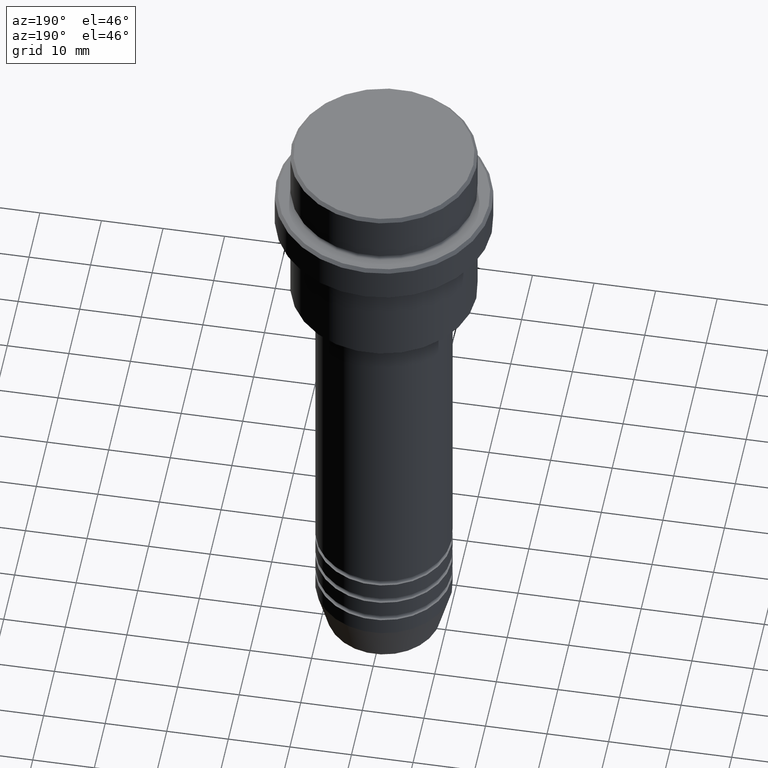
[diagram: clean part render]
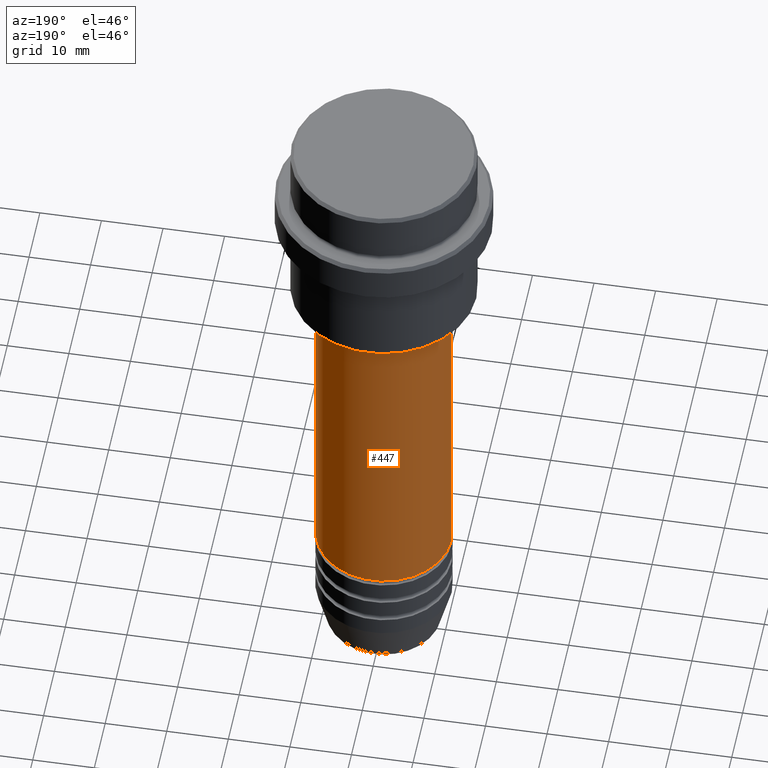
[diagram: same view with one face highlighted and labeled with its STEP entity id]
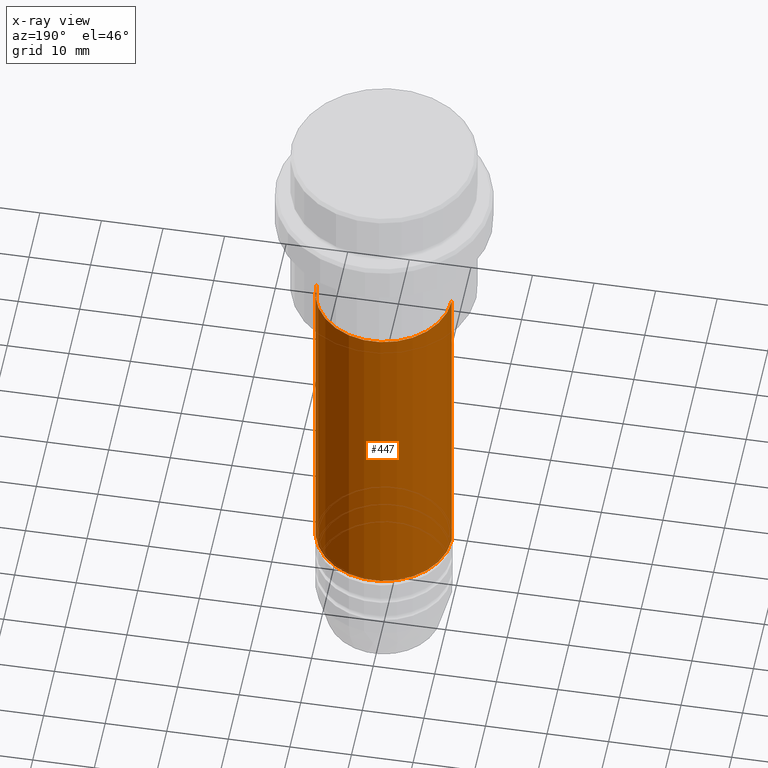
[diagram: x-ray of the same camera — body ghosted, the highlighted face saturated]
A machine part, auxiliary view. The second image highlights one B-rep face of the part: STEP entity #447.
The next image is the same camera in x-ray: the body ghosted, the highlighted face saturated — about 0% of this face is hidden behind the body in this view.
In plain terms, the highlighted cylindrical surface (partial cylindrical patch) has radius 11 mm, axis along (-0, -0, 1).
Its self-contained STEP definition (entity closure, byte-faithful):
#25 = VECTOR ( 'NONE', #541, 1000.000000000000000 ) ;
#45 = ORIENTED_EDGE ( 'NONE', *, *, #81, .T. ) ;
#81 = EDGE_CURVE ( 'NONE', #822, #452, #1109, .T. ) ;
#95 = CIRCLE ( 'NONE', #492, 10.99999999999999822 ) ;
#129 = DIRECTION ( 'NONE',  ( -0.000000000000000000, -0.000000000000000000, 1.000000000000000000 ) ) ;
#152 = ORIENTED_EDGE ( 'NONE', *, *, #594, .F. ) ;
#199 = CARTESIAN_POINT ( 'NONE',  ( -11.00000000000000000, 1.347111479062088405E-15, -86.99999999999988631 ) ) ;
#238 = DIRECTION ( 'NONE',  ( -0.000000000000000000, -0.000000000000000000, 1.000000000000000000 ) ) ;
#264 = CIRCLE ( 'NONE', #1162, 11.00000000000000000 ) ;
#310 = CARTESIAN_POINT ( 'NONE',  ( 0.000000000000000000, 0.000000000000000000, -86.99999999999988631 ) ) ;
#407 = FACE_OUTER_BOUND ( 'NONE', #650, .T. ) ;
#415 = LINE ( 'NONE', #857, #769 ) ;
#447 = ADVANCED_FACE ( 'NONE', ( #407 ), #1284, .T. ) ;
#452 = VERTEX_POINT ( 'NONE', #568 ) ;
#486 = VERTEX_POINT ( 'NONE', #900 ) ;
#490 = AXIS2_PLACEMENT_3D ( 'NONE', #745, #1186, #1124 ) ;
#492 = AXIS2_PLACEMENT_3D ( 'NONE', #529, #129, #1412 ) ;
#529 = CARTESIAN_POINT ( 'NONE',  ( 0.000000000000000000, 0.000000000000000000, -31.99999999999997868 ) ) ;
#541 = DIRECTION ( 'NONE',  ( -0.000000000000000000, -0.000000000000000000, 1.000000000000000000 ) ) ;
#568 = CARTESIAN_POINT ( 'NONE',  ( -10.99999999999999822, 1.347111479062088207E-15, -31.99999999999997868 ) ) ;
#594 = EDGE_CURVE ( 'NONE', #919, #452, #95, .T. ) ;
#615 = EDGE_CURVE ( 'NONE', #486, #919, #415, .T. ) ;
#633 = EDGE_CURVE ( 'NONE', #486, #822, #264, .T. ) ;
#650 = EDGE_LOOP ( 'NONE', ( #983, #45, #152, #968 ) ) ;
#681 = DIRECTION ( 'NONE',  ( 1.000000000000000000, 0.000000000000000000, 0.000000000000000000 ) ) ;
#745 = CARTESIAN_POINT ( 'NONE',  ( 0.000000000000000000, 0.000000000000000000, 0.000000000000000000 ) ) ;
#769 = VECTOR ( 'NONE', #1092, 1000.000000000000000 ) ;
#822 = VERTEX_POINT ( 'NONE', #199 ) ;
#857 = CARTESIAN_POINT ( 'NONE',  ( 11.00000000000000000, 0.000000000000000000, 0.000000000000000000 ) ) ;
#900 = CARTESIAN_POINT ( 'NONE',  ( 11.00000000000000000, 0.000000000000000000, -86.99999999999988631 ) ) ;
#919 = VERTEX_POINT ( 'NONE', #1191 ) ;
#968 = ORIENTED_EDGE ( 'NONE', *, *, #615, .F. ) ;
#983 = ORIENTED_EDGE ( 'NONE', *, *, #633, .T. ) ;
#1092 = DIRECTION ( 'NONE',  ( -0.000000000000000000, -0.000000000000000000, 1.000000000000000000 ) ) ;
#1109 = LINE ( 'NONE', #1307, #25 ) ;
#1124 = DIRECTION ( 'NONE',  ( 1.000000000000000000, 0.000000000000000000, 0.000000000000000000 ) ) ;
#1162 = AXIS2_PLACEMENT_3D ( 'NONE', #310, #238, #681 ) ;
#1186 = DIRECTION ( 'NONE',  ( -0.000000000000000000, -0.000000000000000000, 1.000000000000000000 ) ) ;
#1191 = CARTESIAN_POINT ( 'NONE',  ( 10.99999999999999822, 0.000000000000000000, -31.99999999999997868 ) ) ;
#1284 = CYLINDRICAL_SURFACE ( 'NONE', #490, 11.00000000000000000 ) ;
#1307 = CARTESIAN_POINT ( 'NONE',  ( -11.00000000000000000, 1.347111479062088405E-15, 0.000000000000000000 ) ) ;
#1412 = DIRECTION ( 'NONE',  ( 1.000000000000000000, 0.000000000000000000, 0.000000000000000000 ) ) ;